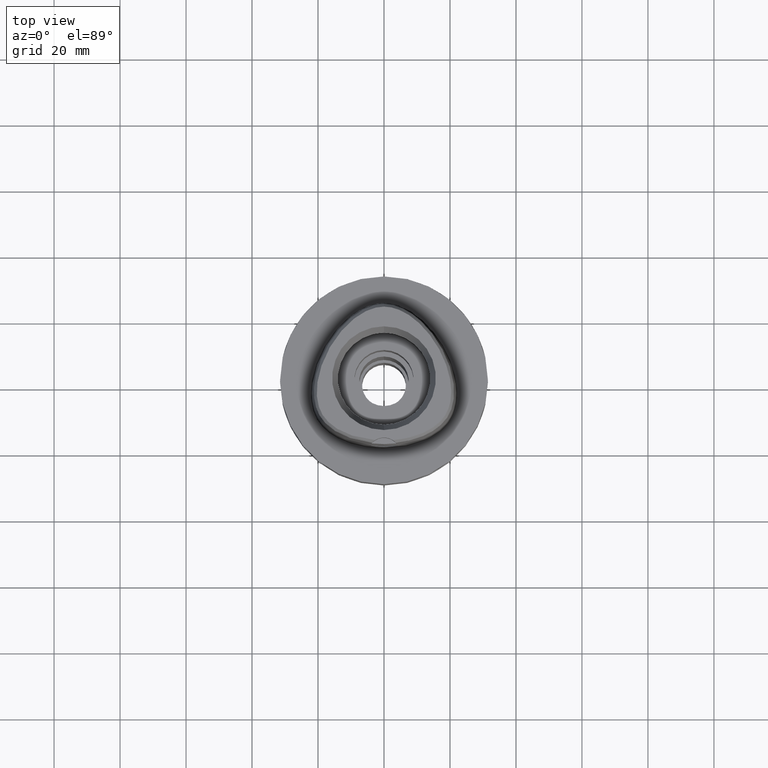
[diagram: clean part render]
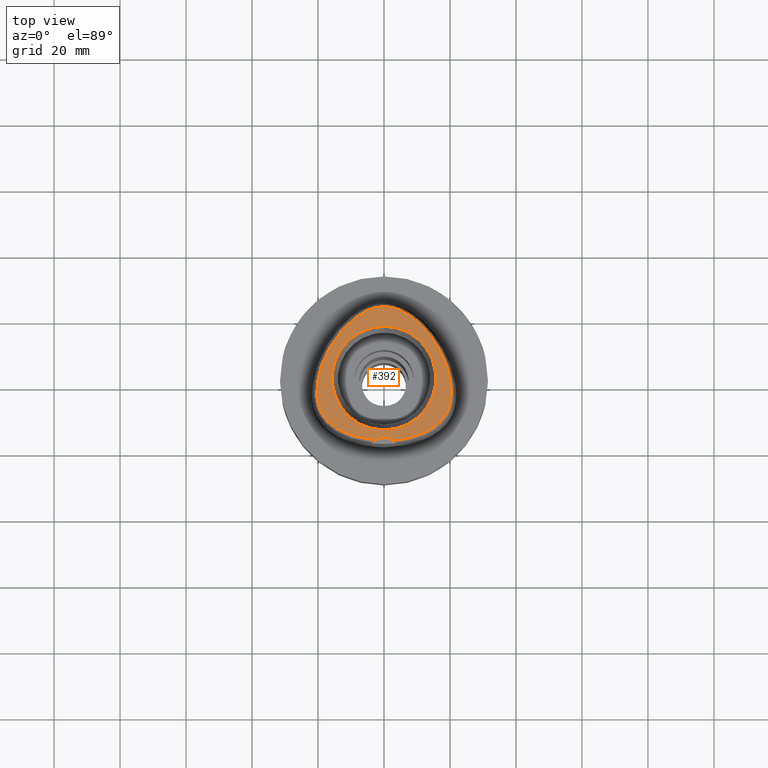
[diagram: same view with one face highlighted and labeled with its STEP entity id]
A machine part, top view. The second image highlights one B-rep face of the part: STEP entity #392.
In plain terms, the highlighted planar face has unit normal (0, 0, 1).
Its self-contained STEP definition (entity closure, byte-faithful):
#74 = CARTESIAN_POINT ( 'NONE',  ( -15.24692477332081175, 11.25717358966310755, 38.00000000000499512 ) ) ;
#105 = CARTESIAN_POINT ( 'NONE',  ( -20.16012968311737907, -1.009698174524232606, 38.00000000000265743 ) ) ;
#148 = CARTESIAN_POINT ( 'NONE',  ( -17.91005512243620501, -12.13778127739205992, 38.00000000000104450 ) ) ;
#158 = CARTESIAN_POINT ( 'NONE',  ( 5.894487344449758304, 20.13186406532240369, 37.99999999999187850 ) ) ;
#164 = DIRECTION ( 'NONE',  ( 0.0000000000000000000, 1.000000000000000000, 0.0000000000000000000 ) ) ;
#174 = CARTESIAN_POINT ( 'NONE',  ( -11.31790883121303537, -16.80796958613212411, 37.99999999999833022 ) ) ;
#188 = CARTESIAN_POINT ( 'NONE',  ( 0.2185816947241482899, 21.68728795389963082, 38.00000000000265032 ) ) ;
#209 = CARTESIAN_POINT ( 'NONE',  ( 12.44125753246372135, 14.89118158853157681, 37.99999999999734257 ) ) ;
#245 = CARTESIAN_POINT ( 'NONE',  ( 0.0000000000000000000, 15.71487483155999776, 38.00000000000000000 ) ) ;
#271 = CARTESIAN_POINT ( 'NONE',  ( -10.48962422759535151, 16.86631853279001447, 38.00000000000899547 ) ) ;
#302 = CARTESIAN_POINT ( 'NONE',  ( 12.37622418509452871, -16.33871033285951668, 37.99999999999440092 ) ) ;
#331 = CARTESIAN_POINT ( 'NONE',  ( 14.21382211799339323, -15.34284287400207347, 37.99999999999607780 ) ) ;
#339 = CIRCLE ( 'NONE', #589, 5.000000000000000888 ) ;
#392 = ADVANCED_FACE ( 'NONE', ( #790, #2346 ), #3148, .T. ) ;
#518 = CARTESIAN_POINT ( 'NONE',  ( -6.188376196366319526, -18.31830638231242858, 37.99999999999849365 ) ) ;
#524 = ORIENTED_EDGE ( 'NONE', *, *, #3345, .F. ) ;
#541 = CARTESIAN_POINT ( 'NONE',  ( -17.60426951086833469, 7.098774535281218157, 37.99999999999845812 ) ) ;
#560 = CARTESIAN_POINT ( 'NONE',  ( -20.36398648679307399, -5.278470727085188052, 38.00000000000105871 ) ) ;
#582 = CARTESIAN_POINT ( 'NONE',  ( -4.254559144977971386, 20.86660163697164450, 37.99999999999781153 ) ) ;
#589 = AXIS2_PLACEMENT_3D ( 'NONE', #2488, #2436, #977 ) ;
#597 = CARTESIAN_POINT ( 'NONE',  ( 10.48999540691260712, 16.86597469870240218, 38.00000000000534328 ) ) ;
#607 = CARTESIAN_POINT ( 'NONE',  ( -9.524337278001256735, 17.70558492631571212, 38.00000000000133582 ) ) ;
#619 = CARTESIAN_POINT ( 'NONE',  ( -2.682279906006999948, -18.78035848609999903, 38.00000000000000000 ) ) ;
#638 = CARTESIAN_POINT ( 'NONE',  ( 19.28677546796830811, -9.867757137505465792, 38.00000000000090949 ) ) ;
#691 = CARTESIAN_POINT ( 'NONE',  ( 19.94150023628204238, 0.2261566111943758006, 38.00000000000120792 ) ) ;
#715 = CARTESIAN_POINT ( 'NONE',  ( 19.54993126781917212, -9.226212439885706829, 38.00000000000078160 ) ) ;
#790 = FACE_OUTER_BOUND ( 'NONE', #3327, .T. ) ;
#863 = CARTESIAN_POINT ( 'NONE',  ( 11.46587147799728790, 15.92717600803334932, 37.99999999999675282 ) ) ;
#895 = CARTESIAN_POINT ( 'NONE',  ( -7.599370508970451077, -18.01010694911749255, 38.00000000000459721 ) ) ;
#926 = CARTESIAN_POINT ( 'NONE',  ( -12.37132652997766868, -16.34104299087996992, 38.00000000000002842 ) ) ;
#932 = EDGE_CURVE ( 'NONE', #2204, #963, #4997, .T. ) ;
#963 = VERTEX_POINT ( 'NONE', #4636 ) ;
#968 = CARTESIAN_POINT ( 'NONE',  ( -19.78262210840233237, -8.543146992552122398, 38.00000000000181899 ) ) ;
#977 = DIRECTION ( 'NONE',  ( 0.0000000000000000000, 1.000000000000000000, 0.0000000000000000000 ) ) ;
#984 = VERTEX_POINT ( 'NONE', #619 ) ;
#1033 = CARTESIAN_POINT ( 'NONE',  ( 6.196495988003204225, -18.31673538864679074, 38.00000000000095923 ) ) ;
#1056 = CARTESIAN_POINT ( 'NONE',  ( 10.17751632998053957, -17.24426134458812498, 37.99999999999587885 ) ) ;
#1084 = AXIS2_PLACEMENT_3D ( 'NONE', #4089, #2918, #164 ) ;
#1110 = CARTESIAN_POINT ( 'NONE',  ( 18.99619228226315215, -10.46780014453532814, 37.99999999999408118 ) ) ;
#1146 = EDGE_CURVE ( 'NONE', #984, #2204, #4325, .T. ) ;
#1177 = ORIENTED_EDGE ( 'NONE', *, *, #3919, .F. ) ;
#1224 = CARTESIAN_POINT ( 'NONE',  ( 0.6513209347955463135, 21.67370899611525914, 38.00000000000483169 ) ) ;
#1252 = CARTESIAN_POINT ( 'NONE',  ( 1.325020189552662542, 21.61081414409216350, 37.99999999999780442 ) ) ;
#1260 = CARTESIAN_POINT ( 'NONE',  ( -16.09805956313813979, 9.908742513515225170, 38.00000000000567724 ) ) ;
#1285 = CARTESIAN_POINT ( 'NONE',  ( -14.34402387966224346, 12.54761970512960723, 37.99999999999662492 ) ) ;
#1305 = CARTESIAN_POINT ( 'NONE',  ( -18.24302769442109096, 5.671232572957970675, 37.99999999999922551 ) ) ;
#1360 = CARTESIAN_POINT ( 'NONE',  ( -3.470944899555000168E-11, 21.68728795390000030, 38.00000000000000000 ) ) ;
#1370 = CARTESIAN_POINT ( 'NONE',  ( -3.470944899555000168E-11, 21.68728795390000030, 38.00000000000000000 ) ) ;
#1382 = CARTESIAN_POINT ( 'NONE',  ( 16.09765529146898189, 9.909410920130413913, 37.99999999999214140 ) ) ;
#1414 = CARTESIAN_POINT ( 'NONE',  ( 16.36283630828036806, -13.76236604534940788, 38.00000000000159872 ) ) ;
#1481 = CARTESIAN_POINT ( 'NONE',  ( 18.67722910598030595, -11.03372143227902669, 38.00000000000223821 ) ) ;
#1505 = CARTESIAN_POINT ( 'NONE',  ( 7.606839420237140104, -18.00827588386069067, 37.99999999999440092 ) ) ;
#1574 = CIRCLE ( 'NONE', #1084, 15.71487483155999776 ) ;
#1665 = CARTESIAN_POINT ( 'NONE',  ( -17.45119705494258611, -12.68365517585419155, 38.00000000000643041 ) ) ;
#1705 = CARTESIAN_POINT ( 'NONE',  ( -3.522896839653952838, -18.70811514173285417, 37.99999999999959499 ) ) ;
#1729 = VERTEX_POINT ( 'NONE', #245 ) ;
#1742 = CARTESIAN_POINT ( 'NONE',  ( 4.255661039971879056, 20.86618068829920958, 37.99999999999707256 ) ) ;
#1766 = CARTESIAN_POINT ( 'NONE',  ( 14.34383722811582196, 12.54786717290089904, 37.99999999999567279 ) ) ;
#1787 = CARTESIAN_POINT ( 'NONE',  ( 17.60373714028374437, 7.099883643192525184, 37.99999999999883471 ) ) ;
#1816 = CARTESIAN_POINT ( 'NONE',  ( 20.27923816685165193, -6.179850483268303662, 37.99999999999968026 ) ) ;
#1829 = CARTESIAN_POINT ( 'NONE',  ( -5.893543501601036461, 20.13235399351674815, 38.00000000000529354 ) ) ;
#1839 = CARTESIAN_POINT ( 'NONE',  ( 16.93855157777426257, -13.22377441788825081, 37.99999999999490541 ) ) ;
#1849 = CARTESIAN_POINT ( 'NONE',  ( -5.058220461389105971, 20.53445508814216325, 37.99999999999719336 ) ) ;
#1895 = CARTESIAN_POINT ( 'NONE',  ( 20.15127154947379751, -7.022178451340828076, 37.99999999999980815 ) ) ;
#1912 = DIRECTION ( 'NONE',  ( 1.000000000000000000, 0.0000000000000000000, 0.0000000000000000000 ) ) ;
#2016 = CARTESIAN_POINT ( 'NONE',  ( -19.26324493738484733, 2.868570891456788008, 38.00000000000481748 ) ) ;
#2043 = CARTESIAN_POINT ( 'NONE',  ( -20.40060226222836093, -4.311417605381589802, 38.00000000000336087 ) ) ;
#2063 = AXIS2_PLACEMENT_3D ( 'NONE', #2530, #4854, #4059 ) ;
#2072 = CARTESIAN_POINT ( 'NONE',  ( -19.94188961899313028, 0.2242544969874973870, 38.00000000000307665 ) ) ;
#2111 = CARTESIAN_POINT ( 'NONE',  ( -18.79649882724863730, 4.256255933891445409, 37.99999999999811706 ) ) ;
#2170 = CARTESIAN_POINT ( 'NONE',  ( 20.30478359881668027, -2.175347700950404750, 37.99999999999706546 ) ) ;
#2192 = CARTESIAN_POINT ( 'NONE',  ( 20.15982952132120332, -1.007721426051954694, 38.00000000000602540 ) ) ;
#2204 = VERTEX_POINT ( 'NONE', #3169 ) ;
#2236 = CARTESIAN_POINT ( 'NONE',  ( -7.655222869371837824, 19.09452359225981155, 37.99999999999975842 ) ) ;
#2268 = CARTESIAN_POINT ( 'NONE',  ( 17.91165267838853126, -12.13575389397816728, 38.00000000000120792 ) ) ;
#2346 = FACE_BOUND ( 'NONE', #3045, .T. ) ;
#2424 = CARTESIAN_POINT ( 'NONE',  ( -4.706994425064555898, -18.56721852572237808, 38.00000000000883205 ) ) ;
#2436 = DIRECTION ( 'NONE',  ( 0.0000000000000000000, 0.0000000000000000000, 1.000000000000000000 ) ) ;
#2449 = CARTESIAN_POINT ( 'NONE',  ( -14.21001600787698926, -15.34519100085896781, 38.00000000000274980 ) ) ;
#2480 = CARTESIAN_POINT ( 'NONE',  ( -12.44116897271148936, 14.89128547409779557, 38.00000000000171951 ) ) ;
#2488 = CARTESIAN_POINT ( 'NONE',  ( 0.0000000000000000000, -23.00000000000000000, 38.00000000000000000 ) ) ;
#2499 = CARTESIAN_POINT ( 'NONE',  ( -18.99520880204008577, -10.46968343926327272, 37.99999999999996447 ) ) ;
#2530 = CARTESIAN_POINT ( 'NONE',  ( 0.0000000000000000000, 0.0000000000000000000, 38.00000000000000000 ) ) ;
#2532 = CARTESIAN_POINT ( 'NONE',  ( 7.655962789342717123, 19.09402979100072173, 38.00000000000513012 ) ) ;
#2582 = CARTESIAN_POINT ( 'NONE',  ( 19.98468477322797554, -7.807876343103786532, 37.99999999999579359 ) ) ;
#2656 = CARTESIAN_POINT ( 'NONE',  ( 18.31883910943184191, -11.58595831188182679, 37.99999999999698730 ) ) ;
#2803 = CARTESIAN_POINT ( 'NONE',  ( 5.059249257020699275, 20.53399274679179598, 37.99999999999587175 ) ) ;
#2834 = CARTESIAN_POINT ( 'NONE',  ( -13.40435640711610965, 13.76268382997282913, 37.99999999999641886 ) ) ;
#2857 = CARTESIAN_POINT ( 'NONE',  ( -16.88647904405018707, 8.517821442302137669, 38.00000000000463274 ) ) ;
#2883 = CARTESIAN_POINT ( 'NONE',  ( -15.71788912669659233, -14.29843101566161145, 37.99999999999574385 ) ) ;
#2902 = CARTESIAN_POINT ( 'NONE',  ( -13.33457781970100520, -15.85148397417309241, 38.00000000000013500 ) ) ;
#2918 = DIRECTION ( 'NONE',  ( 0.0000000000000000000, 0.0000000000000000000, 1.000000000000000000 ) ) ;
#2937 = CARTESIAN_POINT ( 'NONE',  ( 16.88599964843232826, 8.518708218769280194, 38.00000000000073186 ) ) ;
#3045 = EDGE_LOOP ( 'NONE', ( #4993, #1177 ) ) ;
#3047 = CARTESIAN_POINT ( 'NONE',  ( 19.78323211892427835, -8.541156231035307300, 38.00000000000017764 ) ) ;
#3050 = CARTESIAN_POINT ( 'NONE',  ( 0.0000000000000000000, -15.71487483155999776, 38.00000000000000000 ) ) ;
#3069 = CARTESIAN_POINT ( 'NONE',  ( 2.682287482605000051, -18.78036330228999873, 38.00000000000000000 ) ) ;
#3128 = ORIENTED_EDGE ( 'NONE', *, *, #1146, .F. ) ;
#3148 = PLANE ( 'NONE',  #3694 ) ;
#3169 = CARTESIAN_POINT ( 'NONE',  ( -3.470944899555000168E-11, 21.68728795390000030, 38.00000000000000000 ) ) ;
#3202 = CARTESIAN_POINT ( 'NONE',  ( -10.17136073855668599, -17.24644253470553323, 38.00000000000520117 ) ) ;
#3232 = CARTESIAN_POINT ( 'NONE',  ( -8.930096025509957514, -17.65000298921372490, 38.00000000000280664 ) ) ;
#3276 = CARTESIAN_POINT ( 'NONE',  ( -15.00295592773793452, -14.82617991125910173, 38.00000000000176925 ) ) ;
#3313 = CARTESIAN_POINT ( 'NONE',  ( 2.736932690726610051, 21.34527940056961270, 38.00000000000085976 ) ) ;
#3327 = EDGE_LOOP ( 'NONE', ( #4158, #3128, #524 ) ) ;
#3345 = EDGE_CURVE ( 'NONE', #963, #984, #339, .T. ) ;
#3361 = CARTESIAN_POINT ( 'NONE',  ( 17.45306278053344329, -12.68156296993246634, 38.00000000000137135 ) ) ;
#3364 = EDGE_CURVE ( 'NONE', #4517, #1729, #4853, .T. ) ;
#3390 = CARTESIAN_POINT ( 'NONE',  ( 4.715576077241794728, -18.56597918135463843, 37.99999999999690914 ) ) ;
#3424 = CARTESIAN_POINT ( 'NONE',  ( -6.759433772716614719, 19.65454812513192806, 37.99999999999536016 ) ) ;
#3462 = CARTESIAN_POINT ( 'NONE',  ( 11.32341394162705583, -16.80569392800520845, 37.99999999999863576 ) ) ;
#3584 = CARTESIAN_POINT ( 'NONE',  ( -19.98419490691496136, -7.809898894995483509, 37.99999999999741362 ) ) ;
#3611 = CARTESIAN_POINT ( 'NONE',  ( -20.30498420086948030, -2.177378896258179708, 38.00000000000558487 ) ) ;
#3639 = CARTESIAN_POINT ( 'NONE',  ( -19.64434054693363052, 1.520253387635674303, 37.99999999999333511 ) ) ;
#3661 = CARTESIAN_POINT ( 'NONE',  ( -16.93638123745786217, -13.22593246128539768, 37.99999999999892708 ) ) ;
#3671 = CARTESIAN_POINT ( 'NONE',  ( 13.40430406168898081, 13.76274261013361588, 38.00000000000372324 ) ) ;
#3684 = CARTESIAN_POINT ( 'NONE',  ( -20.15090095364814360, -7.024227649787604832, 38.00000000000114397 ) ) ;
#3694 = AXIS2_PLACEMENT_3D ( 'NONE', #4712, #3916, #1912 ) ;
#3742 = CARTESIAN_POINT ( 'NONE',  ( 19.64387775268306058, 1.522048414458088805, 37.99999999999842260 ) ) ;
#3768 = CARTESIAN_POINT ( 'NONE',  ( 20.40062138794313285, -4.309334958867824916, 38.00000000000317613 ) ) ;
#3788 = CARTESIAN_POINT ( 'NONE',  ( -11.46564124494589088, 15.92741340513743253, 37.99999999999849365 ) ) ;
#3798 = CARTESIAN_POINT ( 'NONE',  ( 8.936919536467240022, -17.64796721715441308, 37.99999999999656808 ) ) ;
#3810 = CARTESIAN_POINT ( 'NONE',  ( -2.735698246183108306, 21.34559102902134242, 37.99999999999894129 ) ) ;
#3846 = CARTESIAN_POINT ( 'NONE',  ( 15.72078707640092077, -14.29615620309326296, 37.99999999999938183 ) ) ;
#3916 = DIRECTION ( 'NONE',  ( 0.0000000000000000000, 0.0000000000000000000, 1.000000000000000000 ) ) ;
#3919 = EDGE_CURVE ( 'NONE', #1729, #4517, #1574, .T. ) ;
#4022 = CARTESIAN_POINT ( 'NONE',  ( -20.27898581532015143, -6.181921586190170181, 38.00000000000004263 ) ) ;
#4052 = CARTESIAN_POINT ( 'NONE',  ( -20.38301517462944901, -3.278344853327837427, 38.00000000000750333 ) ) ;
#4059 = DIRECTION ( 'NONE',  ( 0.0000000000000000000, -1.000000000000000000, 0.0000000000000000000 ) ) ;
#4061 = CARTESIAN_POINT ( 'NONE',  ( 8.578848111816514077, 18.44609846599158232, 37.99999999999857891 ) ) ;
#4073 = CARTESIAN_POINT ( 'NONE',  ( -19.54919922642128682, -9.228169790568205855, 38.00000000000132161 ) ) ;
#4083 = CARTESIAN_POINT ( 'NONE',  ( 3.482188079160024152, 21.13472718027612274, 37.99999999999866418 ) ) ;
#4089 = CARTESIAN_POINT ( 'NONE',  ( 0.0000000000000000000, 0.0000000000000000000, 38.00000000000000000 ) ) ;
#4097 = CARTESIAN_POINT ( 'NONE',  ( -8.578220530113092934, 18.44656747109504380, 38.00000000000741807 ) ) ;
#4108 = CARTESIAN_POINT ( 'NONE',  ( 9.524842839488030677, 17.70516372194830979, 38.00000000000562750 ) ) ;
#4158 = ORIENTED_EDGE ( 'NONE', *, *, #932, .F. ) ;
#4164 = CARTESIAN_POINT ( 'NONE',  ( -0.6498990081534683494, 21.67378274708244845, 37.99999999999958789 ) ) ;
#4193 = CARTESIAN_POINT ( 'NONE',  ( -0.2181979014508659553, 21.68728795389199249, 37.99999999999972999 ) ) ;
#4202 = CARTESIAN_POINT ( 'NONE',  ( 19.26272899268400707, 2.870227893749665249, 37.99999999999612044 ) ) ;
#4225 = CARTESIAN_POINT ( 'NONE',  ( 20.38292172607199859, -3.276278498261581351, 37.99999999999496936 ) ) ;
#4325 = B_SPLINE_CURVE_WITH_KNOTS ( 'NONE', 3,
 ( #4864, #4816, #1705, #2424, #518, #895, #3232, #3202, #174, #926, #2902, #2449, #3276, #2883, #4455, #3661, #1665, #148, #4794, #4839, #2499, #4472, #4073, #968, #3584, #3684, #4022, #560, #2043, #4052, #3611, #105, #2072, #3639, #2016, #2111, #1305, #541, #2857, #1260, #74, #1285, #2834, #2480, #3788, #271, #607, #4097, #2236, #3424, #1829, #1849, #582, #4981, #3810, #4961, #4911, #4164, #4193, #1370 ),
 .UNSPECIFIED., .F., .F.,
 ( 4, 1, 1, 1, 1, 1, 1, 1, 1, 1, 1, 1, 1, 1, 1, 1, 1, 1, 1, 1, 1, 1, 1, 1, 1, 1, 1, 1, 1, 1, 1, 1, 1, 1, 1, 1, 1, 1, 1, 1, 1, 1, 1, 1, 1, 1, 1, 1, 1, 1, 1, 1, 1, 1, 1, 1, 1, 4 ),
 ( 0.0000000000000000000, 0.005420919554200098744, 0.02318126027639999531, 0.04094160099879995407, 0.05870194172099996166, 0.07646228244330000035, 0.09422262316550000794, 0.1119829638877999356, 0.1297433046099999432, 0.1475036453321999508, 0.1652639860544999895, 0.1830243267768000281, 0.2007846674991000668, 0.2185450082212999634, 0.2363053489436000021, 0.2540656896658000097, 0.2718260303881000484, 0.2895863711103000560, 0.3073467118325999836, 0.3251070525547999912, 0.3428673932771000299, 0.3606277339994000686, 0.3783880747216000762, 0.3961484154438998928, 0.4139087561661000114, 0.4316690968884000501, 0.4494294376106000577, 0.4671897783328999854, 0.4849501190552000240, 0.5027104597774000316, 0.5204708004996999593, 0.5382311412219000779, 0.5559914819442000056, 0.5737518226664000132, 0.5915121633886999408, 0.6092725041108999484, 0.6270328448331999871, 0.6447931855555000258, 0.6625535262777000334, 0.6803138669999999610, 0.6980742077221999686, 0.7158345484445000073, 0.7335948891667000149, 0.7513552298890000536, 0.7691155706112000612, 0.7868759113336000199, 0.8046362520558000275, 0.8223965927780999552, 0.8401569335002999628, 0.8579172742224999704, 0.8756776149448000091, 0.8934379556670000166, 0.9111982963893099363, 0.9289586371115700070, 0.9467189778338299666, 0.9644793185560800453, 0.9822396592783400049, 1.000000000000000000 ),
 .UNSPECIFIED. ) ;
#4455 = CARTESIAN_POINT ( 'NONE',  ( -16.36032397153828200, -13.76458520344704795, 38.00000000000686384 ) ) ;
#4463 = CARTESIAN_POINT ( 'NONE',  ( 2.018320379028467837, 21.50256508436607561, 38.00000000000047606 ) ) ;
#4472 = CARTESIAN_POINT ( 'NONE',  ( -19.28591707036677505, -9.869682450886653413, 37.99999999999703704 ) ) ;
#4479 = CARTESIAN_POINT ( 'NONE',  ( 6.760281394350961648, 19.65404668909676644, 37.99999999999465672 ) ) ;
#4517 = VERTEX_POINT ( 'NONE', #3050 ) ;
#4558 = CARTESIAN_POINT ( 'NONE',  ( 20.36412151360959299, -5.276385427453320176, 37.99999999999814548 ) ) ;
#4587 = CARTESIAN_POINT ( 'NONE',  ( 13.33890749495933115, -15.84912955619949670, 37.99999999999350564 ) ) ;
#4612 = CARTESIAN_POINT ( 'NONE',  ( 18.24247239569130841, 5.672548708071395218, 37.99999999999911893 ) ) ;
#4636 = CARTESIAN_POINT ( 'NONE',  ( 2.682287482605000051, -18.78036330228999873, 38.00000000000000000 ) ) ;
#4712 = CARTESIAN_POINT ( 'NONE',  ( 0.0000000000000000000, 0.0000000000000000000, 38.00000000000000000 ) ) ;
#4794 = CARTESIAN_POINT ( 'NONE',  ( -18.31748213707460948, -11.58791794387952656, 37.99999999999758415 ) ) ;
#4816 = CARTESIAN_POINT ( 'NONE',  ( -2.841965291530342164, -18.76757795571697329, 37.99999999999793232 ) ) ;
#4839 = CARTESIAN_POINT ( 'NONE',  ( -18.67608643721436223, -11.03561202291031229, 38.00000000000241585 ) ) ;
#4853 = CIRCLE ( 'NONE', #2063, 15.71487483155999776 ) ;
#4854 = DIRECTION ( 'NONE',  ( 0.0000000000000000000, 0.0000000000000000000, 1.000000000000000000 ) ) ;
#4864 = CARTESIAN_POINT ( 'NONE',  ( -2.682279906006999948, -18.78035848609999903, 38.00000000000000000 ) ) ;
#4895 = CARTESIAN_POINT ( 'NONE',  ( 15.24661770199473310, 11.25762885477915631, 37.99999999999924682 ) ) ;
#4911 = CARTESIAN_POINT ( 'NONE',  ( -1.323674540693940971, 21.61098849315565573, 38.00000000000007105 ) ) ;
#4926 = CARTESIAN_POINT ( 'NONE',  ( 15.00628712263501718, -14.82385870794443505, 37.99999999999728573 ) ) ;
#4961 = CARTESIAN_POINT ( 'NONE',  ( -2.017025177695991101, 21.50280829368114865, 37.99999999999782574 ) ) ;
#4971 = CARTESIAN_POINT ( 'NONE',  ( 2.845098933833300148, -18.76733062685566367, 37.99999999999968026 ) ) ;
#4981 = CARTESIAN_POINT ( 'NONE',  ( -3.481017203588666398, 21.13509756881708412, 37.99999999999833022 ) ) ;
#4993 = ORIENTED_EDGE ( 'NONE', *, *, #3364, .F. ) ;
#4996 = CARTESIAN_POINT ( 'NONE',  ( 3.529311563348367375, -18.70747079909512323, 37.99999999999916866 ) ) ;
#4997 = B_SPLINE_CURVE_WITH_KNOTS ( 'NONE', 3,
 ( #1360, #188, #1224, #1252, #4463, #3313, #4083, #1742, #2803, #158, #4479, #2532, #4061, #4108, #597, #863, #209, #3671, #1766, #4895, #1382, #2937, #1787, #4612, #5027, #4202, #3742, #691, #2192, #2170, #4225, #3768, #4558, #1816, #1895, #2582, #3047, #715, #638, #1110, #1481, #2656, #2268, #3361, #1839, #1414, #3846, #4926, #331, #4587, #302, #3462, #1056, #3798, #1505, #1033, #3390, #4996, #4971, #3069 ),
 .UNSPECIFIED., .F., .F.,
 ( 4, 1, 1, 1, 1, 1, 1, 1, 1, 1, 1, 1, 1, 1, 1, 1, 1, 1, 1, 1, 1, 1, 1, 1, 1, 1, 1, 1, 1, 1, 1, 1, 1, 1, 1, 1, 1, 1, 1, 1, 1, 1, 1, 1, 1, 1, 1, 1, 1, 1, 1, 1, 1, 1, 1, 1, 1, 4 ),
 ( 0.0000000000000000000, 0.01775854187129999318, 0.03551708374169992855, 0.05327562561200005486, 0.07103416748239999023, 0.08879270935270000553, 0.1065512512231000519, 0.1243097930933999562, 0.1420683349638000026, 0.1598268768341000179, 0.1775854187044000332, 0.1953439605747999686, 0.2131025024450999839, 0.2308610443155000302, 0.2486195861857999345, 0.2663781280563000120, 0.2841366699266000273, 0.3018952117970000737, 0.3196537536672999780, 0.3374122955377000244, 0.3551708374080000397, 0.3729293792782999439, 0.3906879211486999903, 0.4084464630190000056, 0.4262050048894000520, 0.4439635467596999563, 0.4617220886301000027, 0.4794806305004000180, 0.4972391723707999533, 0.5149977142410999686, 0.5327562561113999839, 0.5505147979818000303, 0.5682733398521000456, 0.5860318817224999810, 0.6037904235927999963, 0.6215489654632000427, 0.6393075073334999470, 0.6570660492038999934, 0.6748245910742000087, 0.6925831329445000240, 0.7103416748149000703, 0.7281002166851999746, 0.7458587585556000210, 0.7636173004259000363, 0.7813758422962999717, 0.7991343841665999870, 0.8168929260370000334, 0.8346514679073000487, 0.8524100097776999840, 0.8701685516479999993, 0.8879270935183000146, 0.9056856353886799660, 0.9234441772589799813, 0.9412027191293600437, 0.9589612609997000270, 0.9767198028700500023, 0.9944783447403919840, 1.000000000000000000 ),
 .UNSPECIFIED. ) ;
#5027 = CARTESIAN_POINT ( 'NONE',  ( 18.79595068775788036, 4.257753965101914062, 38.00000000000292033 ) ) ;